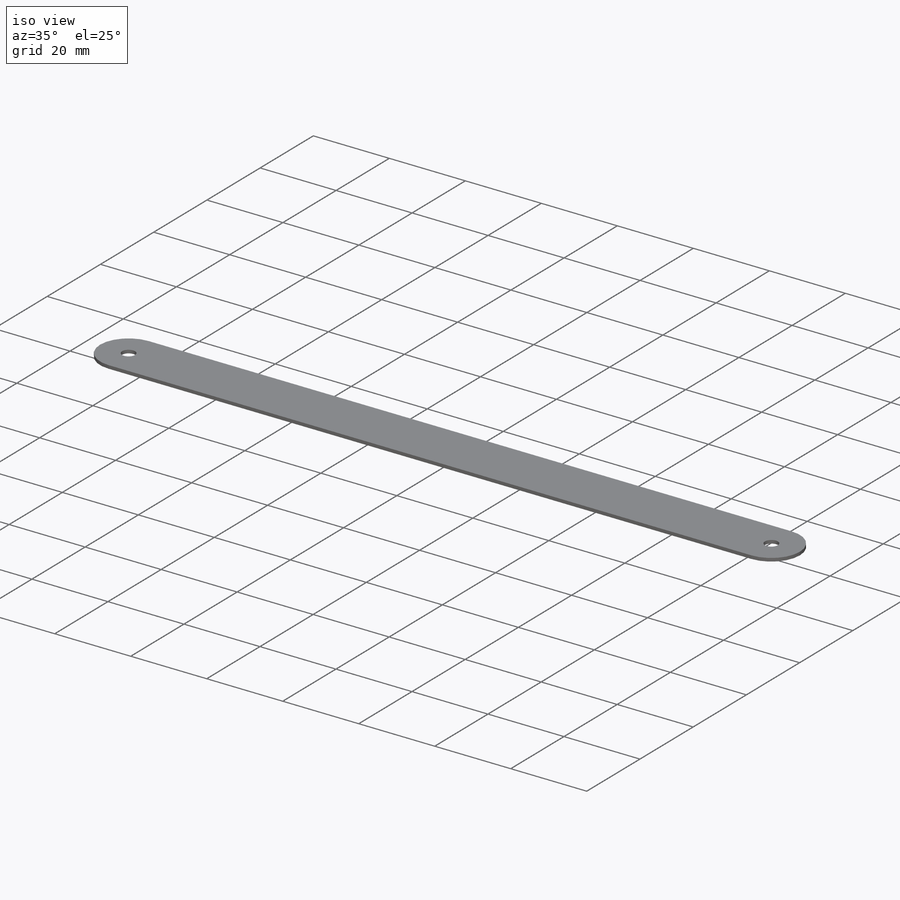
[diagram: iso view]
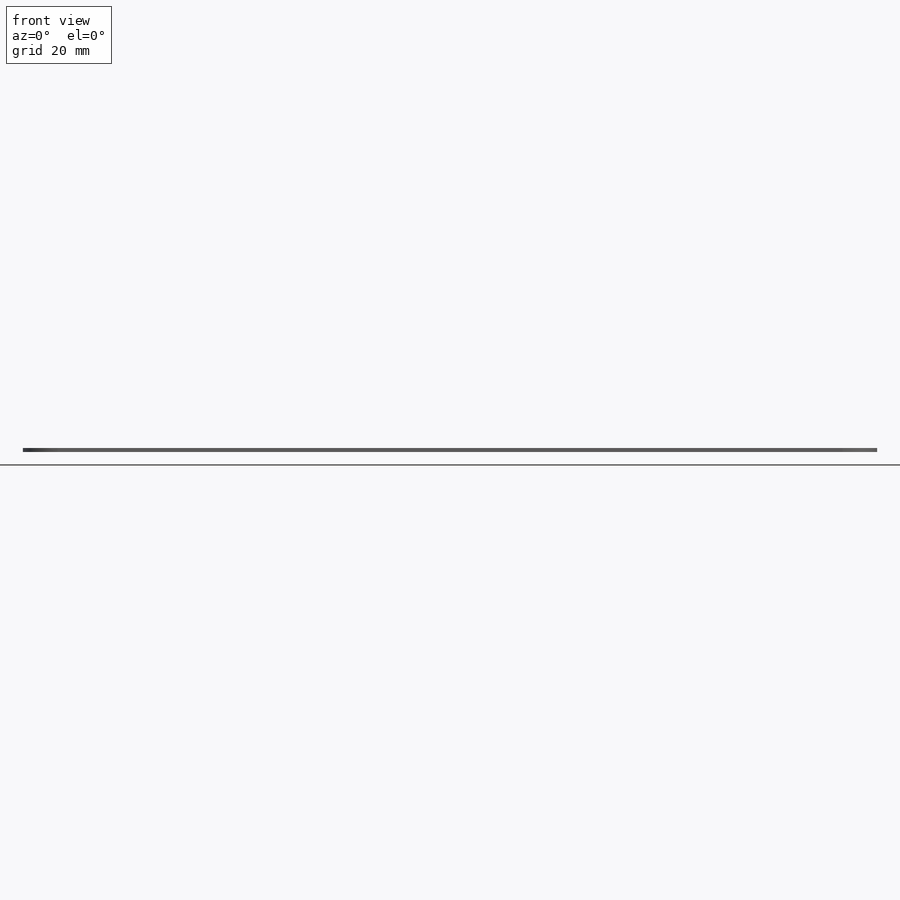
[diagram: front view]
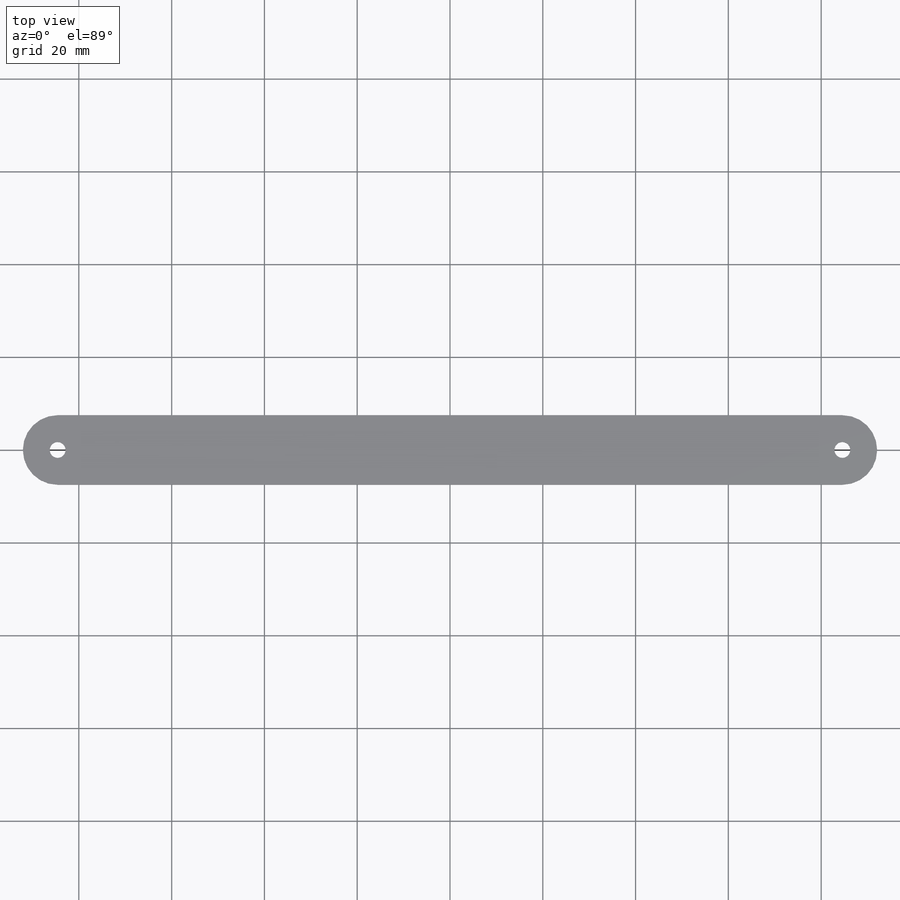
[diagram: top view]
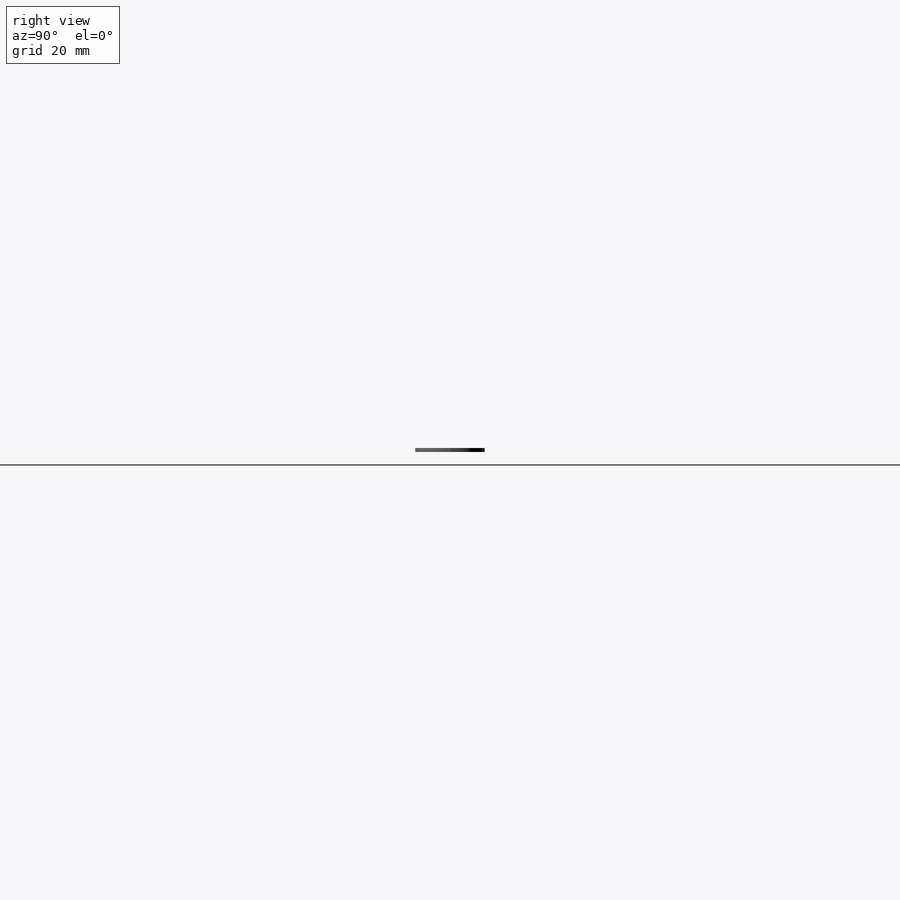
[diagram: right view]
SOLIDWORKS PART (.sldprt)
format: sldprt  version: not decoded by parser v0  size: 179,200 bytes
history: native  units: mm
features: sketch x9, sheet_metal_op x2, fillet x2, material x1, hole x1 + 2 further entries (+12 scaffold rows collapsed; 2 parser-record rows omitted)
feature tree (31):
  scaffold x12  (default folders/planes/origin — collapsed)
  material  "Material <not specified>"
  sketch  "Sketch2"  dims[c1.D1=184.15mm c1.D2=15.0mm c2.D1=0.7366mm c2.D2=0.5 c2.D3=0.0mm c2.D6=500.0mm]
  sheet_metal_op  "Base-Flange1"
  hole  "M3 Clearance Hole1"  Diameter=3.4mm Depth=1.29mm
  sketch  "Sketch8"  dims[D1=7.5mm D2=7.5mm]
  sketch  "Sketch7"  dims[hole-wizard template sketch: 47 standard entries collapsed; hole parameters kept: c15.Hole Depth=1.29mm c15.D3=~14.816244mm c15.Drill Angle=118.0deg]
  fillet  "Fillet1"  Radius=7.5mm
  sketch  "Bend-Lines1"
  sketch  "Bounding-Box1"
  sheet_metal_op  "Sheet-Metal(1)"
  "Flat-Pattern(1)"
  sketch  "Bend-Lines2"
  sketch  "Bounding-Box2"
  parser-record x2  (decoder bookkeeping rows leaked as tree rows — omitted from the tree; the rows remain in map.json)
  fillet  "Sheet-Metal(2)"  Radius=0.7366mm
  "Flat-Pattern(1)"
  sketch  "Bend-Lines2"
  sketch  "Bounding-Box2"
decode coverage: 6 of 14 modeling features carry decoded parameters; 2 rows unclassified (native names shown)
note: ~ marks probable driven/reference dimensions
note: suppression state not decoded; provenance and decode notes live in map.json
